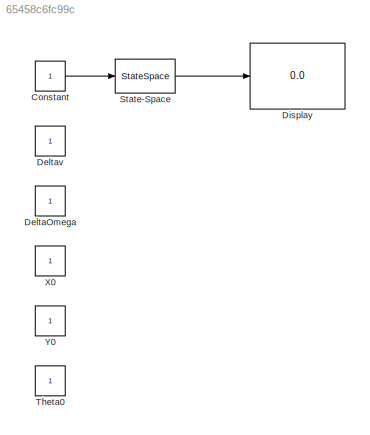
MODEL slx_65458c6fc99c
KIND model
CONFIG AbsTol = auto
CONFIG EnableMultiTasking = off
CONFIG FixedStep = auto
CONFIG MaxStep = auto
CONFIG MinStep = auto
CONFIG RelTol = 1e-3
CONFIG SampleTimeConstraint = Unconstrained
CONFIG Solver = VariableStepAuto
CONFIG SolverName = VariableStepAuto
CONFIG StartTime = 0.0
CONFIG StopTime = 10.0
BLOCK [Constant] Constant
BLOCK [Constant] DeltaOmega
  Commented = on
BLOCK [Constant] Deltav
  Commented = on
BLOCK [Display] Display
  Decimation = 1
  Ports = [1]
BLOCK [StateSpace] State-Space
  A = A
  B = B
  C = C
  ContinuousStateAttributes = ''unicycle"
  D = D
  InitialCondition = 0
  Ports = [1, 1]
BLOCK [Constant] Theta0
  Commented = on
BLOCK [Constant] X0
  Commented = on
BLOCK [Constant] Y0
  Commented = on
LINE Constant:1 -> State-Space:1
LINE State-Space:1 -> Display:1
